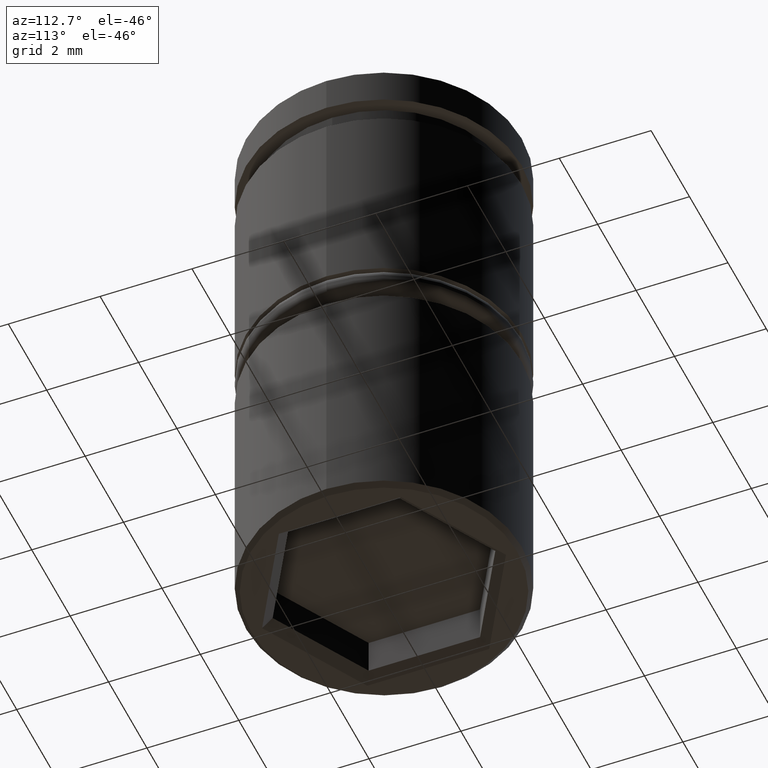
[diagram: clean part render]
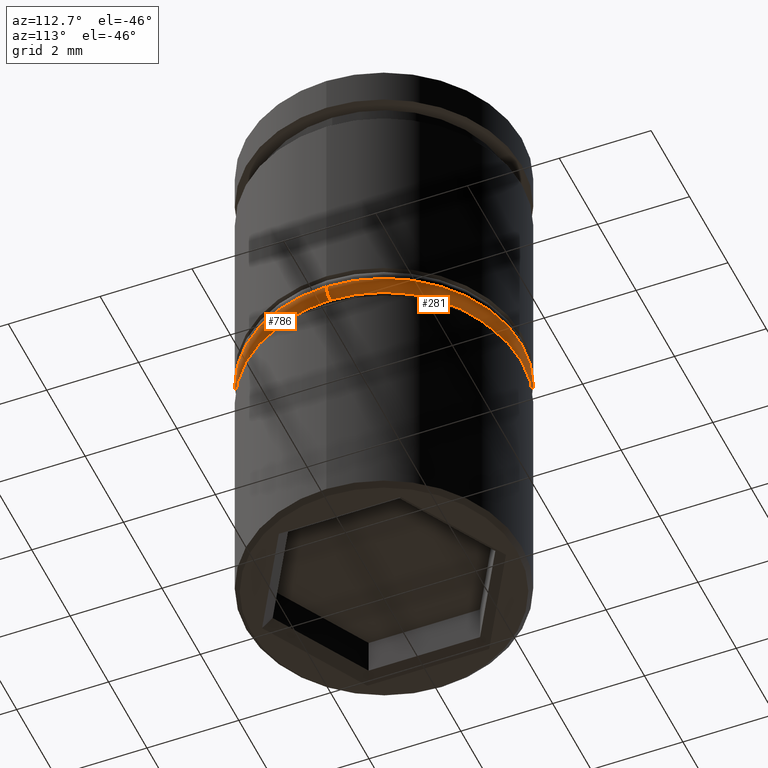
[diagram: same view with one multi-face feature highlighted, each face labeled with its STEP entity id]
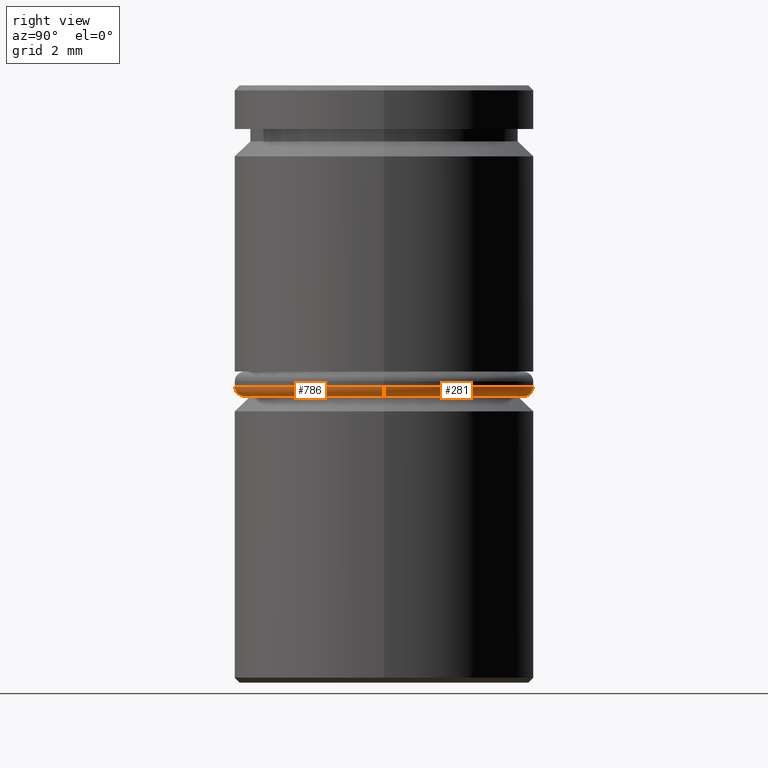
[diagram: same view with one multi-face feature highlighted, each face labeled with its STEP entity id]
A machine part, auxiliary view. The highlighted faces form ONE feature: a constant-radius fillet chain: 2 tangent blend faces with common blend radius 0.2 mm. The faces share edges in the B-rep.
A second angle (right view) of the same feature is appended — it is thin or edge-on in the first view.
Their STEP definitions:
[1] entity #281 (Torus):
#56 = ORIENTED_EDGE ( 'NONE', *, *, #979, .F. ) ;
#87 = DIRECTION ( 'NONE',  ( 1.000000000000000000, 0.000000000000000000, 0.000000000000000000 ) ) ;
#97 = EDGE_CURVE ( 'NONE', #804, #1111, #1148, .T. ) ;
#101 = VERTEX_POINT ( 'NONE', #437 ) ;
#106 = CARTESIAN_POINT ( 'NONE',  ( 2.800000000000000266, 0.000000000000000000, -6.249999999999999112 ) ) ;
#135 = CARTESIAN_POINT ( 'NONE',  ( 0.000000000000000000, 0.000000000000000000, -6.049999999999999822 ) ) ;
#261 = DIRECTION ( 'NONE',  ( 0.000000000000000000, 0.000000000000000000, 1.000000000000000000 ) ) ;
#281 = ADVANCED_FACE ( 'NONE', ( #1169 ), #650, .T. ) ;
#326 = CARTESIAN_POINT ( 'NONE',  ( 0.000000000000000000, 0.000000000000000000, -6.249999999999999112 ) ) ;
#345 = DIRECTION ( 'NONE',  ( 1.224646799147353207E-16, 1.000000000000000000, -0.000000000000000000 ) ) ;
#358 = CARTESIAN_POINT ( 'NONE',  ( 0.000000000000000000, 0.000000000000000000, -6.049999999999999822 ) ) ;
#365 = VERTEX_POINT ( 'NONE', #106 ) ;
#405 = EDGE_CURVE ( 'NONE', #365, #101, #723, .T. ) ;
#437 = CARTESIAN_POINT ( 'NONE',  ( 3.000000000000000444, 0.000000000000000000, -6.049999999999999822 ) ) ;
#468 = CIRCLE ( 'NONE', #512, 2.800000000000000266 ) ;
#477 = ORIENTED_EDGE ( 'NONE', *, *, #405, .F. ) ;
#485 = DIRECTION ( 'NONE',  ( 1.000000000000000000, 0.000000000000000000, 0.000000000000000000 ) ) ;
#512 = AXIS2_PLACEMENT_3D ( 'NONE', #326, #574, #485 ) ;
#549 = CARTESIAN_POINT ( 'NONE',  ( -2.800000000000000266, 3.551475717527324325E-16, -6.249999999999999112 ) ) ;
#570 = DIRECTION ( 'NONE',  ( 0.000000000000000000, 0.000000000000000000, -1.000000000000000000 ) ) ;
#574 = DIRECTION ( 'NONE',  ( -0.000000000000000000, -0.000000000000000000, -1.000000000000000000 ) ) ;
#585 = EDGE_LOOP ( 'NONE', ( #56, #768, #998, #477 ) ) ;
#615 = AXIS2_PLACEMENT_3D ( 'NONE', #812, #1020, #570 ) ;
#650 = TOROIDAL_SURFACE ( 'NONE', #913, 2.800000000000000266, 0.2000000000000000111 ) ;
#723 = CIRCLE ( 'NONE', #615, 0.1999999999999996503 ) ;
#735 = CARTESIAN_POINT ( 'NONE',  ( -3.000000000000000444, 3.673940397442060361E-16, -6.049999999999999822 ) ) ;
#768 = ORIENTED_EDGE ( 'NONE', *, *, #97, .T. ) ;
#804 = VERTEX_POINT ( 'NONE', #549 ) ;
#812 = CARTESIAN_POINT ( 'NONE',  ( 2.800000000000000266, 0.000000000000000000, -6.049999999999999822 ) ) ;
#913 = AXIS2_PLACEMENT_3D ( 'NONE', #358, #261, #87 ) ;
#915 = AXIS2_PLACEMENT_3D ( 'NONE', #135, #1046, #954 ) ;
#954 = DIRECTION ( 'NONE',  ( 1.000000000000000000, 0.000000000000000000, 0.000000000000000000 ) ) ;
#979 = EDGE_CURVE ( 'NONE', #804, #365, #468, .T. ) ;
#988 = CIRCLE ( 'NONE', #915, 3.000000000000000444 ) ;
#998 = ORIENTED_EDGE ( 'NONE', *, *, #1016, .F. ) ;
#1016 = EDGE_CURVE ( 'NONE', #101, #1111, #988, .T. ) ;
#1020 = DIRECTION ( 'NONE',  ( 0.000000000000000000, -1.000000000000000000, 0.000000000000000000 ) ) ;
#1046 = DIRECTION ( 'NONE',  ( 0.000000000000000000, 0.000000000000000000, 1.000000000000000000 ) ) ;
#1086 = AXIS2_PLACEMENT_3D ( 'NONE', #1155, #345, #1151 ) ;
#1111 = VERTEX_POINT ( 'NONE', #735 ) ;
#1148 = CIRCLE ( 'NONE', #1086, 0.2000000000000000944 ) ;
#1151 = DIRECTION ( 'NONE',  ( -1.000000000000000000, 1.224646799147353207E-16, 0.000000000000000000 ) ) ;
#1155 = CARTESIAN_POINT ( 'NONE',  ( -2.800000000000000266, 3.429011037612589276E-16, -6.049999999999999822 ) ) ;
#1169 = FACE_OUTER_BOUND ( 'NONE', #585, .T. ) ;
[2] entity #786 (Torus):
#97 = EDGE_CURVE ( 'NONE', #804, #1111, #1148, .T. ) ;
#101 = VERTEX_POINT ( 'NONE', #437 ) ;
#106 = CARTESIAN_POINT ( 'NONE',  ( 2.800000000000000266, 0.000000000000000000, -6.249999999999999112 ) ) ;
#124 = AXIS2_PLACEMENT_3D ( 'NONE', #427, #879, #685 ) ;
#133 = EDGE_LOOP ( 'NONE', ( #1167, #924, #912, #359 ) ) ;
#176 = DIRECTION ( 'NONE',  ( 0.000000000000000000, 0.000000000000000000, 1.000000000000000000 ) ) ;
#189 = DIRECTION ( 'NONE',  ( 0.000000000000000000, 0.000000000000000000, 1.000000000000000000 ) ) ;
#196 = CARTESIAN_POINT ( 'NONE',  ( 0.000000000000000000, 0.000000000000000000, -6.049999999999999822 ) ) ;
#225 = CIRCLE ( 'NONE', #124, 2.800000000000000266 ) ;
#282 = DIRECTION ( 'NONE',  ( 1.000000000000000000, 0.000000000000000000, 0.000000000000000000 ) ) ;
#345 = DIRECTION ( 'NONE',  ( 1.224646799147353207E-16, 1.000000000000000000, -0.000000000000000000 ) ) ;
#359 = ORIENTED_EDGE ( 'NONE', *, *, #856, .F. ) ;
#365 = VERTEX_POINT ( 'NONE', #106 ) ;
#405 = EDGE_CURVE ( 'NONE', #365, #101, #723, .T. ) ;
#427 = CARTESIAN_POINT ( 'NONE',  ( 0.000000000000000000, 0.000000000000000000, -6.249999999999999112 ) ) ;
#437 = CARTESIAN_POINT ( 'NONE',  ( 3.000000000000000444, 0.000000000000000000, -6.049999999999999822 ) ) ;
#449 = AXIS2_PLACEMENT_3D ( 'NONE', #826, #176, #282 ) ;
#549 = CARTESIAN_POINT ( 'NONE',  ( -2.800000000000000266, 3.551475717527324325E-16, -6.249999999999999112 ) ) ;
#570 = DIRECTION ( 'NONE',  ( 0.000000000000000000, 0.000000000000000000, -1.000000000000000000 ) ) ;
#615 = AXIS2_PLACEMENT_3D ( 'NONE', #812, #1020, #570 ) ;
#632 = TOROIDAL_SURFACE ( 'NONE', #821, 2.800000000000000266, 0.2000000000000000111 ) ;
#642 = DIRECTION ( 'NONE',  ( 1.000000000000000000, 0.000000000000000000, 0.000000000000000000 ) ) ;
#685 = DIRECTION ( 'NONE',  ( 1.000000000000000000, 0.000000000000000000, 0.000000000000000000 ) ) ;
#723 = CIRCLE ( 'NONE', #615, 0.1999999999999996503 ) ;
#735 = CARTESIAN_POINT ( 'NONE',  ( -3.000000000000000444, 3.673940397442060361E-16, -6.049999999999999822 ) ) ;
#786 = ADVANCED_FACE ( 'NONE', ( #820 ), #632, .T. ) ;
#804 = VERTEX_POINT ( 'NONE', #549 ) ;
#812 = CARTESIAN_POINT ( 'NONE',  ( 2.800000000000000266, 0.000000000000000000, -6.049999999999999822 ) ) ;
#820 = FACE_OUTER_BOUND ( 'NONE', #133, .T. ) ;
#821 = AXIS2_PLACEMENT_3D ( 'NONE', #196, #189, #642 ) ;
#826 = CARTESIAN_POINT ( 'NONE',  ( 0.000000000000000000, 0.000000000000000000, -6.049999999999999822 ) ) ;
#856 = EDGE_CURVE ( 'NONE', #1111, #101, #1054, .T. ) ;
#879 = DIRECTION ( 'NONE',  ( -0.000000000000000000, -0.000000000000000000, -1.000000000000000000 ) ) ;
#912 = ORIENTED_EDGE ( 'NONE', *, *, #405, .T. ) ;
#924 = ORIENTED_EDGE ( 'NONE', *, *, #1056, .F. ) ;
#1020 = DIRECTION ( 'NONE',  ( 0.000000000000000000, -1.000000000000000000, 0.000000000000000000 ) ) ;
#1054 = CIRCLE ( 'NONE', #449, 3.000000000000000444 ) ;
#1056 = EDGE_CURVE ( 'NONE', #365, #804, #225, .T. ) ;
#1086 = AXIS2_PLACEMENT_3D ( 'NONE', #1155, #345, #1151 ) ;
#1111 = VERTEX_POINT ( 'NONE', #735 ) ;
#1148 = CIRCLE ( 'NONE', #1086, 0.2000000000000000944 ) ;
#1151 = DIRECTION ( 'NONE',  ( -1.000000000000000000, 1.224646799147353207E-16, 0.000000000000000000 ) ) ;
#1155 = CARTESIAN_POINT ( 'NONE',  ( -2.800000000000000266, 3.429011037612589276E-16, -6.049999999999999822 ) ) ;
#1167 = ORIENTED_EDGE ( 'NONE', *, *, #97, .F. ) ;